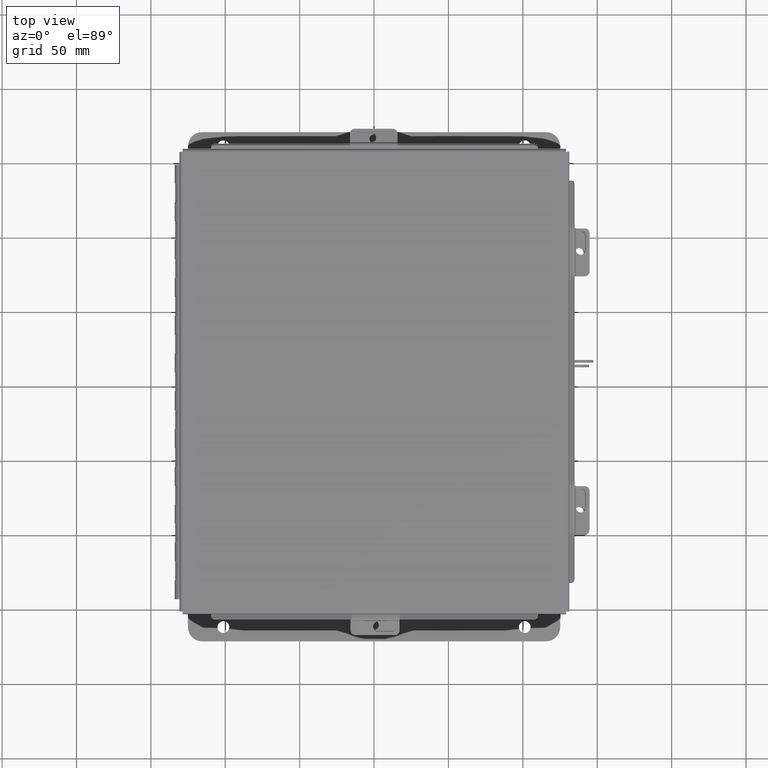
[diagram: clean part render]
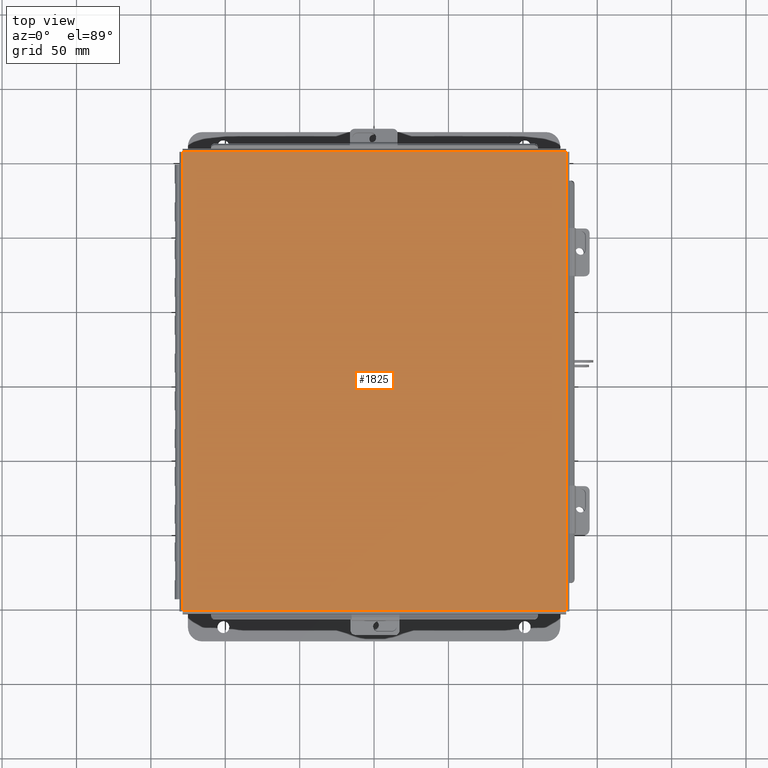
[diagram: same view with one face highlighted and labeled with its STEP entity id]
A machine part, top view. The second image highlights one B-rep face of the part: STEP entity #1825.
In plain terms, the highlighted planar face has unit normal (-0, -0, 1).
Its self-contained STEP definition (entity closure, byte-faithful):
#46 = VECTOR ( 'NONE', #6680, 39.37007874015748100 ) ;
#329 = ORIENTED_EDGE ( 'NONE', *, *, #2058, .T. ) ;
#679 = EDGE_LOOP ( 'NONE', ( #6389, #329, #12898, #17002 ) ) ;
#1194 = CARTESIAN_POINT ( 'NONE',  ( -5.068549999999998300, 6.068550000000001000, -0.07469999999999993300 ) ) ;
#1362 = DIRECTION ( 'NONE',  ( 0.0000000000000000000, 0.0000000000000000000, -1.000000000000000000 ) ) ;
#1600 = CARTESIAN_POINT ( 'NONE',  ( 5.068550000000001000, 6.074478932188137400, -0.07469999999999993300 ) ) ;
#1825 = ADVANCED_FACE ( 'NONE', ( #14693 ), #3840, .T. ) ;
#2038 = VERTEX_POINT ( 'NONE', #1194 ) ;
#2058 = EDGE_CURVE ( 'NONE', #16211, #16643, #3827, .T. ) ;
#2360 = LINE ( 'NONE', #12786, #12847 ) ;
#2518 = CARTESIAN_POINT ( 'NONE',  ( 5.068550000000001000, 6.068550000000001000, -0.07469999999999993300 ) ) ;
#2766 = CARTESIAN_POINT ( 'NONE',  ( 0.0000000000000000000, 0.0000000000000000000, -0.07470000000000000300 ) ) ;
#3650 = LINE ( 'NONE', #16732, #10056 ) ;
#3827 = LINE ( 'NONE', #1600, #17515 ) ;
#3840 = PLANE ( 'NONE',  #11902 ) ;
#6389 = ORIENTED_EDGE ( 'NONE', *, *, #15037, .T. ) ;
#6680 = DIRECTION ( 'NONE',  ( 1.000000000000000000, 0.0000000000000000000, 0.0000000000000000000 ) ) ;
#9228 = EDGE_CURVE ( 'NONE', #16132, #2038, #2360, .T. ) ;
#9919 = DIRECTION ( 'NONE',  ( -1.000000000000000000, 0.0000000000000000000, 0.0000000000000000000 ) ) ;
#10056 = VECTOR ( 'NONE', #9919, 39.37007874015748100 ) ;
#10130 = LINE ( 'NONE', #16248, #46 ) ;
#11902 = AXIS2_PLACEMENT_3D ( 'NONE', #2766, #1362, #13520 ) ;
#12786 = CARTESIAN_POINT ( 'NONE',  ( -5.068549999999998300, -6.074478932188134700, -0.07469999999999993300 ) ) ;
#12847 = VECTOR ( 'NONE', #14125, 39.37007874015748100 ) ;
#12898 = ORIENTED_EDGE ( 'NONE', *, *, #15803, .T. ) ;
#13520 = DIRECTION ( 'NONE',  ( -1.000000000000000000, 0.0000000000000000000, -0.0000000000000000000 ) ) ;
#13870 = DIRECTION ( 'NONE',  ( -0.0000000000000000000, -1.000000000000000000, -0.0000000000000000000 ) ) ;
#14125 = DIRECTION ( 'NONE',  ( -0.0000000000000000000, 1.000000000000000000, -0.0000000000000000000 ) ) ;
#14359 = CARTESIAN_POINT ( 'NONE',  ( 5.068550000000001000, -6.068549999999999200, -0.07469999999999993300 ) ) ;
#14693 = FACE_OUTER_BOUND ( 'NONE', #679, .T. ) ;
#15037 = EDGE_CURVE ( 'NONE', #2038, #16211, #10130, .T. ) ;
#15803 = EDGE_CURVE ( 'NONE', #16643, #16132, #3650, .T. ) ;
#16132 = VERTEX_POINT ( 'NONE', #17386 ) ;
#16211 = VERTEX_POINT ( 'NONE', #2518 ) ;
#16248 = CARTESIAN_POINT ( 'NONE',  ( -5.074478932188135600, 6.068550000000001000, -0.07469999999999993300 ) ) ;
#16643 = VERTEX_POINT ( 'NONE', #14359 ) ;
#16732 = CARTESIAN_POINT ( 'NONE',  ( 5.074478932188137400, -6.068549999999999200, -0.07469999999999993300 ) ) ;
#17002 = ORIENTED_EDGE ( 'NONE', *, *, #9228, .T. ) ;
#17386 = CARTESIAN_POINT ( 'NONE',  ( -5.068549999999998300, -6.068549999999999200, -0.07469999999999993300 ) ) ;
#17515 = VECTOR ( 'NONE', #13870, 39.37007874015748100 ) ;